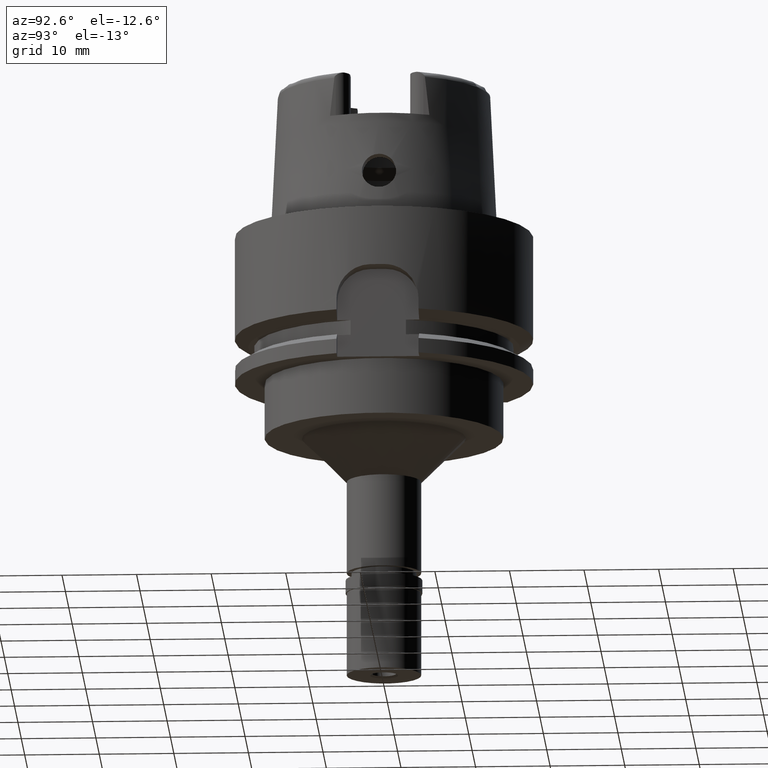
[diagram: clean part render]
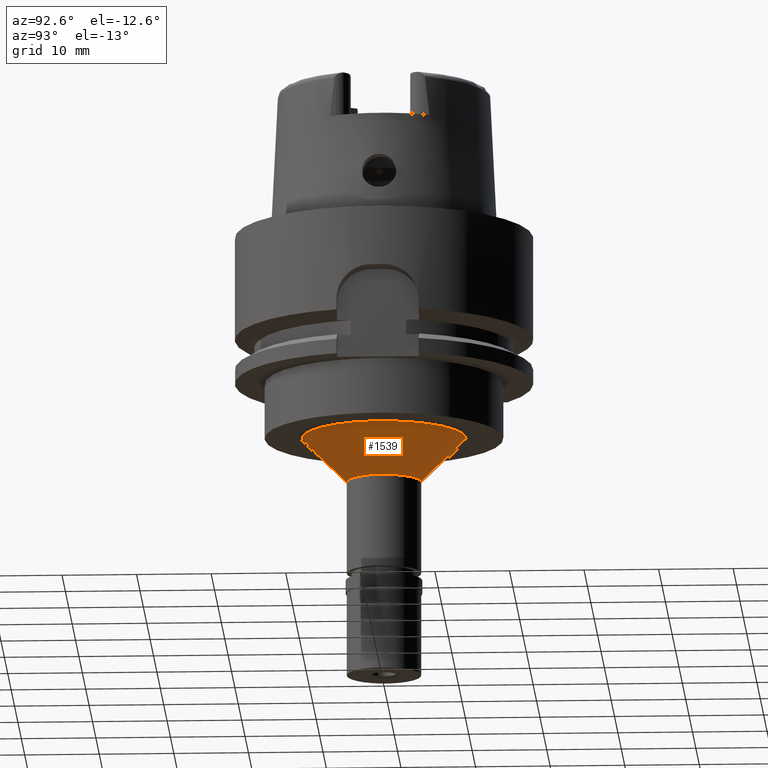
[diagram: same view with one face highlighted and labeled with its STEP entity id]
A machine part, auxiliary view. The second image highlights one B-rep face of the part: STEP entity #1539.
In plain terms, the highlighted conical surface has half-angle 45 deg.
Its self-contained STEP definition (entity closure, byte-faithful):
#204 = DIRECTION ( 'NONE',  ( 0.0000000000000000000, 0.0000000000000000000, 1.000000000000000000 ) ) ;
#254 = VERTEX_POINT ( 'NONE', #3761 ) ;
#478 = VERTEX_POINT ( 'NONE', #2290 ) ;
#516 = VERTEX_POINT ( 'NONE', #3040 ) ;
#533 = ORIENTED_EDGE ( 'NONE', *, *, #5244, .T. ) ;
#545 = DIRECTION ( 'NONE',  ( 0.0000000000000000000, 0.7071067811865474617, -0.7071067811865474617 ) ) ;
#748 = EDGE_CURVE ( 'NONE', #478, #3190, #4497, .T. ) ;
#923 = DIRECTION ( 'NONE',  ( 0.0000000000000000000, 1.000000000000000000, 0.0000000000000000000 ) ) ;
#967 = ORIENTED_EDGE ( 'NONE', *, *, #3176, .F. ) ;
#1537 = AXIS2_PLACEMENT_3D ( 'NONE', #1785, #204, #923 ) ;
#1539 = ADVANCED_FACE ( 'NONE', ( #2186 ), #2473, .T. ) ;
#1604 = EDGE_LOOP ( 'NONE', ( #533, #3876, #2545, #967 ) ) ;
#1716 = CARTESIAN_POINT ( 'NONE',  ( 0.0000000000000000000, -5.000000000000000000, -33.50000000000000000 ) ) ;
#1785 = CARTESIAN_POINT ( 'NONE',  ( 0.0000000000000000000, 0.0000000000000000000, -30.50000000000000000 ) ) ;
#1871 = DIRECTION ( 'NONE',  ( 0.0000000000000000000, 0.0000000000000000000, -1.000000000000000000 ) ) ;
#2186 = FACE_OUTER_BOUND ( 'NONE', #1604, .T. ) ;
#2284 = EDGE_CURVE ( 'NONE', #254, #3190, #4189, .T. ) ;
#2290 = CARTESIAN_POINT ( 'NONE',  ( 0.0000000000000000000, -11.00000000000000000, -27.50000000000000000 ) ) ;
#2298 = DIRECTION ( 'NONE',  ( 0.0000000000000000000, 1.000000000000000000, 0.0000000000000000000 ) ) ;
#2473 = CONICAL_SURFACE ( 'NONE', #1537, 8.000000000000000000, 0.7853981633972997312 ) ;
#2537 = AXIS2_PLACEMENT_3D ( 'NONE', #3098, #1871, #2298 ) ;
#2545 = ORIENTED_EDGE ( 'NONE', *, *, #2284, .F. ) ;
#2771 = DIRECTION ( 'NONE',  ( 0.0000000000000000000, -0.7071067811865474617, -0.7071067811865474617 ) ) ;
#2819 = DIRECTION ( 'NONE',  ( 0.0000000000000000000, 0.0000000000000000000, -1.000000000000000000 ) ) ;
#2959 = AXIS2_PLACEMENT_3D ( 'NONE', #4755, #2819, #4462 ) ;
#2962 = CARTESIAN_POINT ( 'NONE',  ( 0.0000000000000000000, -11.00000000000000000, -27.50000000000000000 ) ) ;
#3040 = CARTESIAN_POINT ( 'NONE',  ( 0.0000000000000000000, 11.00000000000000000, -27.50000000000000000 ) ) ;
#3046 = VECTOR ( 'NONE', #545, 1000.000000000000114 ) ;
#3098 = CARTESIAN_POINT ( 'NONE',  ( 0.0000000000000000000, 0.0000000000000000000, -27.50000000000000000 ) ) ;
#3176 = EDGE_CURVE ( 'NONE', #516, #254, #3978, .T. ) ;
#3190 = VERTEX_POINT ( 'NONE', #1716 ) ;
#3570 = CARTESIAN_POINT ( 'NONE',  ( 0.0000000000000000000, 11.00000000000000000, -27.50000000000000000 ) ) ;
#3761 = CARTESIAN_POINT ( 'NONE',  ( 0.0000000000000000000, 5.000000000000000000, -33.50000000000000000 ) ) ;
#3876 = ORIENTED_EDGE ( 'NONE', *, *, #748, .T. ) ;
#3978 = LINE ( 'NONE', #3570, #4270 ) ;
#4189 = CIRCLE ( 'NONE', #2959, 5.000000000000000000 ) ;
#4270 = VECTOR ( 'NONE', #2771, 1000.000000000000114 ) ;
#4462 = DIRECTION ( 'NONE',  ( 0.0000000000000000000, 1.000000000000000000, 0.0000000000000000000 ) ) ;
#4497 = LINE ( 'NONE', #2962, #3046 ) ;
#4755 = CARTESIAN_POINT ( 'NONE',  ( 0.0000000000000000000, 0.0000000000000000000, -33.50000000000000000 ) ) ;
#5244 = EDGE_CURVE ( 'NONE', #516, #478, #5254, .T. ) ;
#5254 = CIRCLE ( 'NONE', #2537, 11.00000000000000000 ) ;